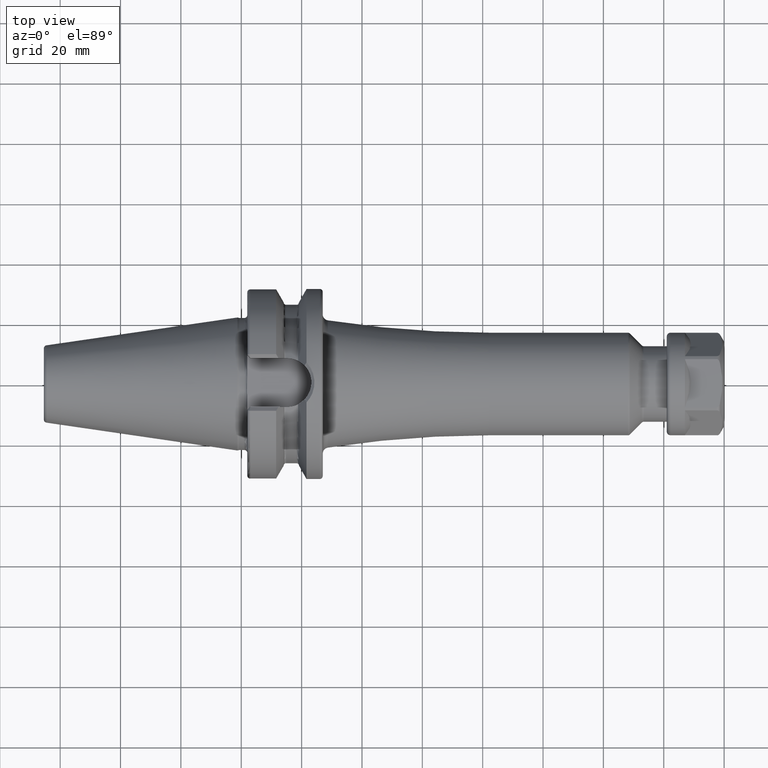
[diagram: clean part render]
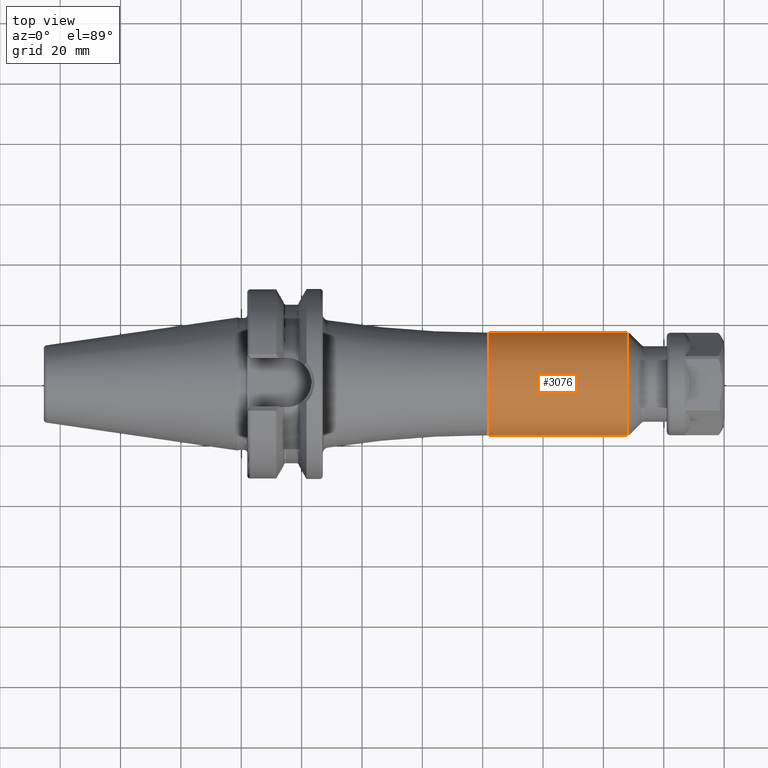
[diagram: same view with one face highlighted and labeled with its STEP entity id]
A machine part, top view. The second image highlights one B-rep face of the part: STEP entity #3076.
In plain terms, the highlighted cylindrical surface (partial cylindrical patch) has radius 17 mm, axis along (1, 0, 0).
Its self-contained STEP definition (entity closure, byte-faithful):
#1101=DIRECTION('',(-1.E0,0.E0,-7.804754887665E-14));
#1102=VECTOR('',#1101,4.608578643763E1);
#1103=CARTESIAN_POINT('',(1.280857864376E2,-1.7E1,3.594138701866E-12));
#1104=LINE('',#1103,#1102);
#1110=DIRECTION('',(-1.E0,0.E0,7.804447649347E-14));
#1111=VECTOR('',#1110,4.608578643763E1);
#1112=CARTESIAN_POINT('',(1.280857864376E2,1.7E1,-3.594659176756E-12));
#1113=LINE('',#1112,#1111);
#1114=CARTESIAN_POINT('',(8.2E1,0.E0,0.E0));
#1115=DIRECTION('',(-1.E0,0.E0,0.E0));
#1116=DIRECTION('',(0.E0,-1.E0,0.E0));
#1117=AXIS2_PLACEMENT_3D('',#1114,#1115,#1116);
#1119=CARTESIAN_POINT('',(1.280857864376E2,0.E0,0.E0));
#1120=DIRECTION('',(-1.E0,0.E0,0.E0));
#1121=DIRECTION('',(0.E0,-1.E0,0.E0));
#1122=AXIS2_PLACEMENT_3D('',#1119,#1120,#1121);
#1493=CARTESIAN_POINT('',(1.280857864376E2,1.7E1,0.E0));
#1494=CARTESIAN_POINT('',(1.280857864376E2,-1.7E1,0.E0));
#1495=VERTEX_POINT('',#1493);
#1496=VERTEX_POINT('',#1494);
#1501=CARTESIAN_POINT('',(8.2E1,-1.7E1,0.E0));
#1502=CARTESIAN_POINT('',(8.2E1,1.7E1,0.E0));
#1503=VERTEX_POINT('',#1501);
#1504=VERTEX_POINT('',#1502);
#3064=CARTESIAN_POINT('',(2.0925E1,0.E0,0.E0));
#3065=DIRECTION('',(1.E0,0.E0,0.E0));
#3066=DIRECTION('',(0.E0,-1.E0,0.E0));
#3067=AXIS2_PLACEMENT_3D('',#3064,#3065,#3066);
#3068=CYLINDRICAL_SURFACE('',#3067,1.7E1);
#3069=ORIENTED_EDGE('',*,*,#3029,.T.);
#3070=ORIENTED_EDGE('',*,*,#3059,.F.);
#3072=ORIENTED_EDGE('',*,*,#3071,.F.);
#3073=ORIENTED_EDGE('',*,*,#3055,.T.);
#3074=EDGE_LOOP('',(#3069,#3070,#3072,#3073));
#3075=FACE_OUTER_BOUND('',#3074,.F.);
#3076=ADVANCED_FACE('',(#3075),#3068,.T.);
#1118=CIRCLE('',#1117,1.7E1);
#1123=CIRCLE('',#1122,1.7E1);
#3029=EDGE_CURVE('',#1503,#1504,#1118,.T.);
#3055=EDGE_CURVE('',#1496,#1503,#1104,.T.);
#3059=EDGE_CURVE('',#1495,#1504,#1113,.T.);
#3071=EDGE_CURVE('',#1496,#1495,#1123,.T.);